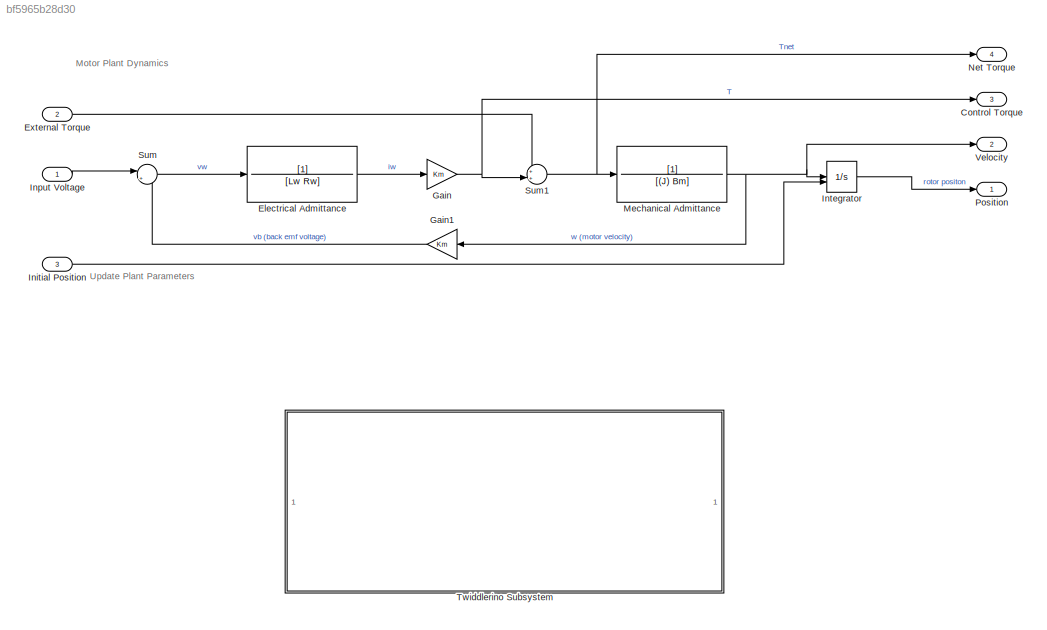
MODEL slx_bf5965b28d30
KIND model
CONFIG AbsTol = auto
CONFIG EnableMultiTasking = off
CONFIG FixedStep = auto
CONFIG InitFcn = %%%%%%%%%%%%%%%%%%%%%%%%%%%%%%%%%%%%%%%%%%%%%%%%%\n%motor parameters\n%we dont know these yet\nJ = 1e-6; %intertia [kg * m^2]\nBm = 1e-6; %kinetic friction [N * m * s]\n\n%from motor datasheet\nKm = 0.011; %motor constant (back emf constant = torque constant)\nRw = 1.17; %motor electric resistance in ohms\nLw = 0.58E-3; %motor inductance in ohms
CONFIG MaxStep = auto
CONFIG MinStep = auto
CONFIG RelTol = 1e-3
CONFIG SampleTimeConstraint = Unconstrained
CONFIG SolverName = VariableStepAuto
CONFIG StartTime = 0.0
CONFIG StopTime = 10.0
BLOCK [Outport] Control Torque
  Port = 3
BLOCK [TransferFcn] Electrical Admittance
  Denominator = [Lw Rw]
BLOCK [Inport] External Torque
  NameLocation = top
  Port = 2
BLOCK [Gain] Gain
  Gain = Km
BLOCK [Gain] Gain1
  Gain = Km
BLOCK [Inport] Initial Position
  Port = 3
BLOCK [Inport] Input Voltage
BLOCK [Integrator] Integrator
  InitialConditionSource = external
BLOCK [TransferFcn] Mechanical Admittance
  Denominator = [(J) Bm]
BLOCK [Outport] Net Torque
  Port = 4
BLOCK [Outport] Position
BLOCK [Sum] Sum
  Inputs = |+-
BLOCK [Sum] Sum1
  Inputs = ++|
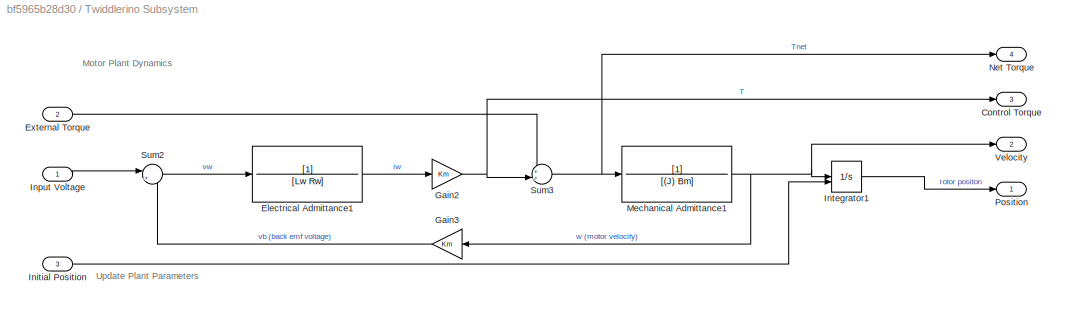
BLOCK [SubSystem] Twiddlerino Subsystem
BLOCK [Outport] Twiddlerino Subsystem/Control Torque
  Port = 3
BLOCK [TransferFcn] Twiddlerino Subsystem/Electrical Admittance1
  Denominator = [Lw Rw]
BLOCK [Inport] Twiddlerino Subsystem/External Torque
  NameLocation = top
  Port = 2
BLOCK [Gain] Twiddlerino Subsystem/Gain2
  Gain = Km
BLOCK [Gain] Twiddlerino Subsystem/Gain3
  Gain = Km
BLOCK [Inport] Twiddlerino Subsystem/Initial Position
  Port = 3
BLOCK [Inport] Twiddlerino Subsystem/Input Voltage
BLOCK [Integrator] Twiddlerino Subsystem/Integrator1
  InitialConditionSource = external
BLOCK [TransferFcn] Twiddlerino Subsystem/Mechanical Admittance1
  Denominator = [(J) Bm]
BLOCK [Outport] Twiddlerino Subsystem/Net Torque
  Port = 4
BLOCK [Outport] Twiddlerino Subsystem/Position
BLOCK [Sum] Twiddlerino Subsystem/Sum2
  Inputs = |+-
BLOCK [Sum] Twiddlerino Subsystem/Sum3
  Inputs = ++|
BLOCK [Outport] Twiddlerino Subsystem/Velocity
  Port = 2
BLOCK [Outport] Velocity
  Port = 2
ANNOTATION (root): Update Plant Parameters
ANNOTATION (root): Motor Plant Dynamics
ANNOTATION Twiddlerino Subsystem: Update Plant Parameters
ANNOTATION Twiddlerino Subsystem: Motor Plant Dynamics
LINE Electrical Admittance:1 -> Gain:1
LINE External Torque:1 -> Sum1:1
LINE Gain1:1 -> Sum:2
NET Gain:1 -> Control Torque:1, Sum1:2
LINE Initial Position:1 -> Integrator:2
LINE Input Voltage:1 -> Sum:1
LINE Integrator:1 -> Position:1
NET Mechanical Admittance:1 -> Gain1:1, Integrator:1, Velocity:1
NET Sum1:1 -> Mechanical Admittance:1, Net Torque:1
LINE Sum:1 -> Electrical Admittance:1
LINE Twiddlerino Subsystem/Electrical Admittance1:1 -> Twiddlerino Subsystem/Gain2:1
LINE Twiddlerino Subsystem/External Torque:1 -> Twiddlerino Subsystem/Sum3:1
NET Twiddlerino Subsystem/Gain2:1 -> Twiddlerino Subsystem/Control Torque:1, Twiddlerino Subsystem/Sum3:2
LINE Twiddlerino Subsystem/Gain3:1 -> Twiddlerino Subsystem/Sum2:2
LINE Twiddlerino Subsystem/Initial Position:1 -> Twiddlerino Subsystem/Integrator1:2
LINE Twiddlerino Subsystem/Input Voltage:1 -> Twiddlerino Subsystem/Sum2:1
LINE Twiddlerino Subsystem/Integrator1:1 -> Twiddlerino Subsystem/Position:1
NET Twiddlerino Subsystem/Mechanical Admittance1:1 -> Twiddlerino Subsystem/Gain3:1, Twiddlerino Subsystem/Integrator1:1, Twiddlerino Subsystem/Velocity:1
LINE Twiddlerino Subsystem/Sum2:1 -> Twiddlerino Subsystem/Electrical Admittance1:1
NET Twiddlerino Subsystem/Sum3:1 -> Twiddlerino Subsystem/Mechanical Admittance1:1, Twiddlerino Subsystem/Net Torque:1
note: NET lines group one-source signal fan-out (src -> all destinations, sorted); 1:1 wires keep LINE
